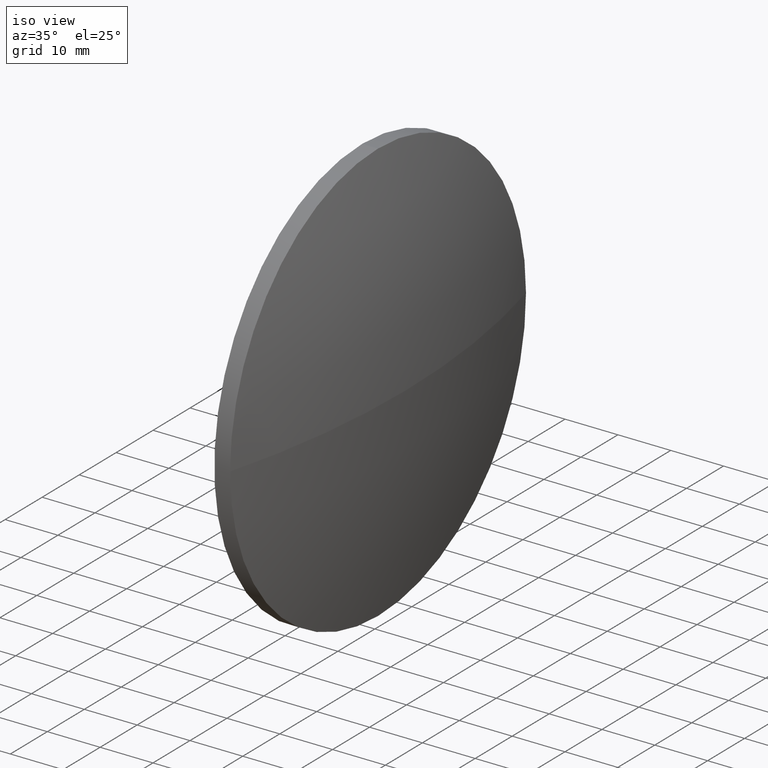
[diagram: clean part render]
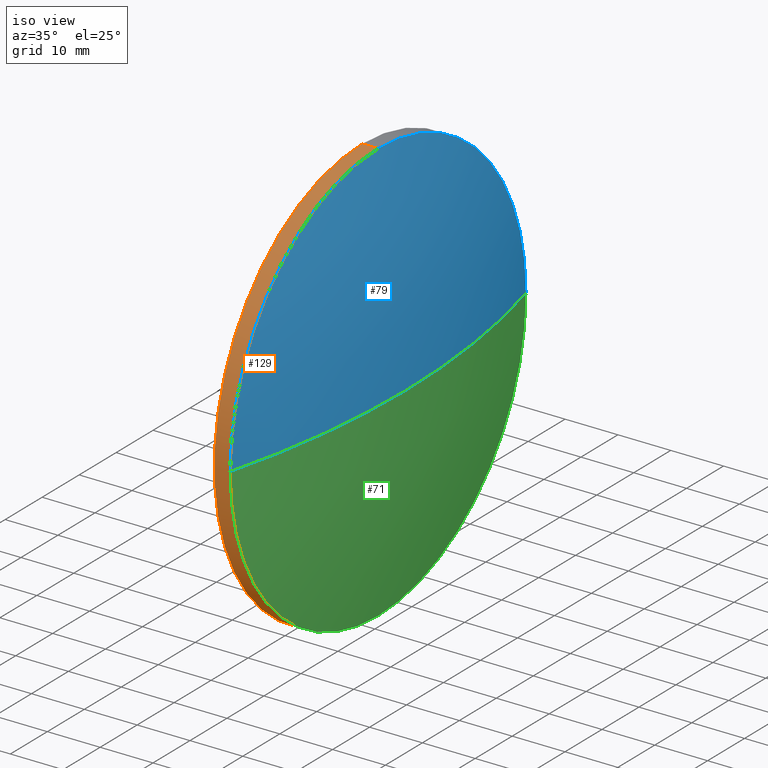
[diagram: same view with three faces highlighted in distinct colors, each labeled with its STEP entity id]
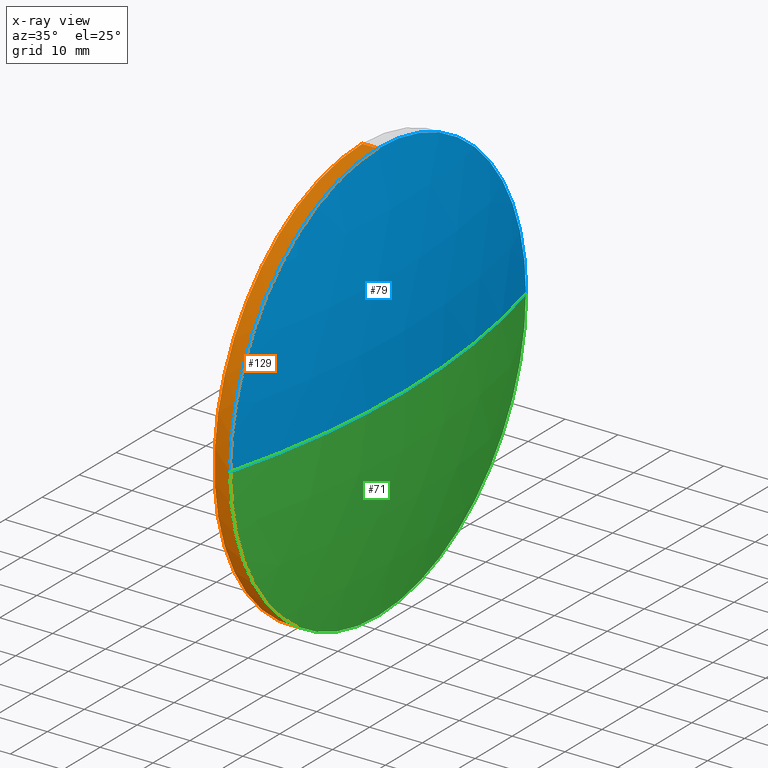
[diagram: x-ray of the same camera — body ghosted, the three highlighted faces saturated]
A machine part, iso view with three faces highlighted in distinct colors.
The next image is the same camera in x-ray (body ghosted, the three faces saturated) — at least one of them is partly hidden behind the body in this view.
Their STEP definitions:

[orange] entity #129 — the highlighted cylindrical surface (partial cylindrical patch) has radius 40 mm, axis along (-1, -0, -0).
#1 = CARTESIAN_POINT ( 'NONE',  ( 786.7768331134177500, 121.1916296255188900, 0.0000000000000000000 ) ) ;
#2 = DIRECTION ( 'NONE',  ( 0.0000000000000000000, 0.0000000000000000000, 1.000000000000000000 ) ) ;
#7 = DIRECTION ( 'NONE',  ( -1.000000000000000000, -0.0000000000000000000, -0.0000000000000000000 ) ) ;
#16 = DIRECTION ( 'NONE',  ( -1.000000000000000000, -0.0000000000000000000, -0.0000000000000000000 ) ) ;
#20 = VERTEX_POINT ( 'NONE', #88 ) ;
#24 = EDGE_CURVE ( 'NONE', #66, #20, #53, .T. ) ;
#29 = EDGE_CURVE ( 'NONE', #35, #66, #163, .T. ) ;
#32 = EDGE_CURVE ( 'NONE', #116, #20, #99, .T. ) ;
#35 = VERTEX_POINT ( 'NONE', #143 ) ;
#40 = EDGE_LOOP ( 'NONE', ( #170, #101, #152, #45, #118 ) ) ;
#44 = DIRECTION ( 'NONE',  ( -1.000000000000000000, -0.0000000000000000000, -0.0000000000000000000 ) ) ;
#45 = ORIENTED_EDGE ( 'NONE', *, *, #24, .T. ) ;
#53 = LINE ( 'NONE', #128, #137 ) ;
#56 = CARTESIAN_POINT ( 'NONE',  ( 789.7768331134177500, 121.1916296255188900, 0.0000000000000000000 ) ) ;
#59 = DIRECTION ( 'NONE',  ( 0.0000000000000000000, 0.0000000000000000000, 1.000000000000000000 ) ) ;
#61 = CARTESIAN_POINT ( 'NONE',  ( 786.7768331134177500, 121.1916296255188900, -40.00000000000000700 ) ) ;
#66 = VERTEX_POINT ( 'NONE', #162 ) ;
#73 = CARTESIAN_POINT ( 'NONE',  ( 789.7768331134177500, 121.1916296255188900, 0.0000000000000000000 ) ) ;
#80 = CARTESIAN_POINT ( 'NONE',  ( 767.9518554358446600, 121.1916296255188900, -40.00000000000000700 ) ) ;
#82 = VECTOR ( 'NONE', #89, 1000.000000000000000 ) ;
#86 = DIRECTION ( 'NONE',  ( 0.0000000000000000000, 0.0000000000000000000, 1.000000000000000000 ) ) ;
#88 = CARTESIAN_POINT ( 'NONE',  ( 786.7768331134177500, 121.1916296255188900, 40.00000000000000700 ) ) ;
#89 = DIRECTION ( 'NONE',  ( -1.000000000000000000, -0.0000000000000000000, -0.0000000000000000000 ) ) ;
#98 = CYLINDRICAL_SURFACE ( 'NONE', #114, 40.00000000000000700 ) ;
#99 = CIRCLE ( 'NONE', #182, 40.00000000000000700 ) ;
#101 = ORIENTED_EDGE ( 'NONE', *, *, #155, .T. ) ;
#105 = CARTESIAN_POINT ( 'NONE',  ( 789.7768331134177500, 121.1916296255188900, -40.00000000000000700 ) ) ;
#114 = AXIS2_PLACEMENT_3D ( 'NONE', #161, #44, #59 ) ;
#116 = VERTEX_POINT ( 'NONE', #61 ) ;
#118 = ORIENTED_EDGE ( 'NONE', *, *, #32, .F. ) ;
#125 = CIRCLE ( 'NONE', #157, 40.00000000000000700 ) ;
#128 = CARTESIAN_POINT ( 'NONE',  ( 767.9518554358446600, 121.1916296255188900, 40.00000000000000700 ) ) ;
#129 = ADVANCED_FACE ( 'NONE', ( #168 ), #98, .T. ) ;
#137 = VECTOR ( 'NONE', #146, 1000.000000000000000 ) ;
#143 = CARTESIAN_POINT ( 'NONE',  ( 789.7768331134177500, 81.19162962551892800, 0.0000000000000000000 ) ) ;
#146 = DIRECTION ( 'NONE',  ( -1.000000000000000000, -0.0000000000000000000, -0.0000000000000000000 ) ) ;
#151 = AXIS2_PLACEMENT_3D ( 'NONE', #56, #171, #86 ) ;
#152 = ORIENTED_EDGE ( 'NONE', *, *, #29, .T. ) ;
#153 = LINE ( 'NONE', #80, #82 ) ;
#155 = EDGE_CURVE ( 'NONE', #186, #35, #125, .T. ) ;
#157 = AXIS2_PLACEMENT_3D ( 'NONE', #73, #7, #178 ) ;
#159 = EDGE_CURVE ( 'NONE', #186, #116, #153, .T. ) ;
#161 = CARTESIAN_POINT ( 'NONE',  ( 767.9518554358446600, 121.1916296255188900, 0.0000000000000000000 ) ) ;
#162 = CARTESIAN_POINT ( 'NONE',  ( 789.7768331134177500, 121.1916296255188900, 40.00000000000000700 ) ) ;
#163 = CIRCLE ( 'NONE', #151, 40.00000000000000700 ) ;
#168 = FACE_OUTER_BOUND ( 'NONE', #40, .T. ) ;
#170 = ORIENTED_EDGE ( 'NONE', *, *, #159, .F. ) ;
#171 = DIRECTION ( 'NONE',  ( -1.000000000000000000, -0.0000000000000000000, -0.0000000000000000000 ) ) ;
#178 = DIRECTION ( 'NONE',  ( 0.0000000000000000000, 0.0000000000000000000, 1.000000000000000000 ) ) ;
#182 = AXIS2_PLACEMENT_3D ( 'NONE', #1, #16, #2 ) ;
#186 = VERTEX_POINT ( 'NONE', #105 ) ;

[blue] entity #79 — the highlighted spherical surface has radius 155.001 mm.
#10 = DIRECTION ( 'NONE',  ( 0.0000000000000000000, 0.0000000000000000000, -1.000000000000000000 ) ) ;
#17 = VERTEX_POINT ( 'NONE', #174 ) ;
#29 = EDGE_CURVE ( 'NONE', #35, #66, #163, .T. ) ;
#30 = CIRCLE ( 'NONE', #183, 155.0007543462769200 ) ;
#35 = VERTEX_POINT ( 'NONE', #143 ) ;
#43 = DIRECTION ( 'NONE',  ( 0.0000000000000000000, 0.0000000000000000000, 1.000000000000000000 ) ) ;
#47 = AXIS2_PLACEMENT_3D ( 'NONE', #117, #10, #108 ) ;
#54 = FACE_OUTER_BOUND ( 'NONE', #142, .T. ) ;
#56 = CARTESIAN_POINT ( 'NONE',  ( 789.7768331134177500, 121.1916296255188900, 0.0000000000000000000 ) ) ;
#57 = VERTEX_POINT ( 'NONE', #127 ) ;
#60 = DIRECTION ( 'NONE',  ( 0.0000000000000000000, -1.224646799147353200E-016, 1.000000000000000000 ) ) ;
#66 = VERTEX_POINT ( 'NONE', #162 ) ;
#75 = CARTESIAN_POINT ( 'NONE',  ( 640.0262610012722500, 121.1916296255189100, 0.0000000000000000000 ) ) ;
#76 = DIRECTION ( 'NONE',  ( -1.000000000000000000, -0.0000000000000000000, -0.0000000000000000000 ) ) ;
#77 = DIRECTION ( 'NONE',  ( 0.0000000000000000000, -1.000000000000000000, 0.0000000000000000000 ) ) ;
#79 = ADVANCED_FACE ( 'NONE', ( #54 ), #184, .T. ) ;
#86 = DIRECTION ( 'NONE',  ( 0.0000000000000000000, 0.0000000000000000000, 1.000000000000000000 ) ) ;
#93 = CARTESIAN_POINT ( 'NONE',  ( 789.7768331134177500, 121.1916296255188900, 0.0000000000000000000 ) ) ;
#108 = DIRECTION ( 'NONE',  ( -1.000000000000000000, 0.0000000000000000000, 0.0000000000000000000 ) ) ;
#109 = DIRECTION ( 'NONE',  ( 0.0000000000000000000, 0.0000000000000000000, 1.000000000000000000 ) ) ;
#111 = DIRECTION ( 'NONE',  ( 0.0000000000000000000, -1.000000000000000000, -1.224646799147353200E-016 ) ) ;
#113 = CIRCLE ( 'NONE', #139, 40.00000000000000700 ) ;
#117 = CARTESIAN_POINT ( 'NONE',  ( 640.0262610012722500, 121.1916296255189100, 0.0000000000000000000 ) ) ;
#121 = EDGE_CURVE ( 'NONE', #17, #57, #30, .T. ) ;
#122 = ORIENTED_EDGE ( 'NONE', *, *, #166, .F. ) ;
#127 = CARTESIAN_POINT ( 'NONE',  ( 789.7768331134177500, 161.1916296255188600, 4.898587196589406700E-015 ) ) ;
#131 = ORIENTED_EDGE ( 'NONE', *, *, #121, .T. ) ;
#138 = CARTESIAN_POINT ( 'NONE',  ( 640.0262610012722500, 121.1916296255189100, 0.0000000000000000000 ) ) ;
#139 = AXIS2_PLACEMENT_3D ( 'NONE', #93, #76, #109 ) ;
#141 = CIRCLE ( 'NONE', #47, 155.0007543462769200 ) ;
#142 = EDGE_LOOP ( 'NONE', ( #156, #131, #122, #165 ) ) ;
#143 = CARTESIAN_POINT ( 'NONE',  ( 789.7768331134177500, 81.19162962551892800, 0.0000000000000000000 ) ) ;
#151 = AXIS2_PLACEMENT_3D ( 'NONE', #56, #171, #86 ) ;
#156 = ORIENTED_EDGE ( 'NONE', *, *, #169, .F. ) ;
#162 = CARTESIAN_POINT ( 'NONE',  ( 789.7768331134177500, 121.1916296255188900, 40.00000000000000700 ) ) ;
#163 = CIRCLE ( 'NONE', #151, 40.00000000000000700 ) ;
#165 = ORIENTED_EDGE ( 'NONE', *, *, #29, .F. ) ;
#166 = EDGE_CURVE ( 'NONE', #66, #57, #113, .T. ) ;
#169 = EDGE_CURVE ( 'NONE', #17, #35, #141, .T. ) ;
#171 = DIRECTION ( 'NONE',  ( -1.000000000000000000, -0.0000000000000000000, -0.0000000000000000000 ) ) ;
#172 = AXIS2_PLACEMENT_3D ( 'NONE', #75, #43, #77 ) ;
#174 = CARTESIAN_POINT ( 'NONE',  ( 795.0270153475492000, 121.1916296255189000, 0.0000000000000000000 ) ) ;
#183 = AXIS2_PLACEMENT_3D ( 'NONE', #138, #60, #111 ) ;
#184 = SPHERICAL_SURFACE ( 'NONE', #172, 155.0007543462769200 ) ;

[green] entity #71 — the highlighted spherical surface has radius 155.001 mm.
#7 = DIRECTION ( 'NONE',  ( -1.000000000000000000, -0.0000000000000000000, -0.0000000000000000000 ) ) ;
#9 = EDGE_LOOP ( 'NONE', ( #90, #110, #78, #120 ) ) ;
#10 = DIRECTION ( 'NONE',  ( 0.0000000000000000000, 0.0000000000000000000, -1.000000000000000000 ) ) ;
#17 = VERTEX_POINT ( 'NONE', #174 ) ;
#30 = CIRCLE ( 'NONE', #183, 155.0007543462769200 ) ;
#34 = DIRECTION ( 'NONE',  ( 0.0000000000000000000, 0.0000000000000000000, 1.000000000000000000 ) ) ;
#35 = VERTEX_POINT ( 'NONE', #143 ) ;
#41 = FACE_OUTER_BOUND ( 'NONE', #9, .T. ) ;
#46 = DIRECTION ( 'NONE',  ( 0.0000000000000000000, 0.0000000000000000000, 1.000000000000000000 ) ) ;
#47 = AXIS2_PLACEMENT_3D ( 'NONE', #117, #10, #108 ) ;
#55 = AXIS2_PLACEMENT_3D ( 'NONE', #135, #133, #34 ) ;
#57 = VERTEX_POINT ( 'NONE', #127 ) ;
#60 = DIRECTION ( 'NONE',  ( 0.0000000000000000000, -1.224646799147353200E-016, 1.000000000000000000 ) ) ;
#71 = ADVANCED_FACE ( 'NONE', ( #41 ), #95, .T. ) ;
#73 = CARTESIAN_POINT ( 'NONE',  ( 789.7768331134177500, 121.1916296255188900, 0.0000000000000000000 ) ) ;
#78 = ORIENTED_EDGE ( 'NONE', *, *, #155, .F. ) ;
#90 = ORIENTED_EDGE ( 'NONE', *, *, #121, .F. ) ;
#95 = SPHERICAL_SURFACE ( 'NONE', #164, 155.0007543462769200 ) ;
#102 = CARTESIAN_POINT ( 'NONE',  ( 640.0262610012722500, 121.1916296255189100, 0.0000000000000000000 ) ) ;
#103 = CIRCLE ( 'NONE', #55, 40.00000000000000700 ) ;
#105 = CARTESIAN_POINT ( 'NONE',  ( 789.7768331134177500, 121.1916296255188900, -40.00000000000000700 ) ) ;
#108 = DIRECTION ( 'NONE',  ( -1.000000000000000000, 0.0000000000000000000, 0.0000000000000000000 ) ) ;
#110 = ORIENTED_EDGE ( 'NONE', *, *, #169, .T. ) ;
#111 = DIRECTION ( 'NONE',  ( 0.0000000000000000000, -1.000000000000000000, -1.224646799147353200E-016 ) ) ;
#117 = CARTESIAN_POINT ( 'NONE',  ( 640.0262610012722500, 121.1916296255189100, 0.0000000000000000000 ) ) ;
#120 = ORIENTED_EDGE ( 'NONE', *, *, #179, .F. ) ;
#121 = EDGE_CURVE ( 'NONE', #17, #57, #30, .T. ) ;
#125 = CIRCLE ( 'NONE', #157, 40.00000000000000700 ) ;
#127 = CARTESIAN_POINT ( 'NONE',  ( 789.7768331134177500, 161.1916296255188600, 4.898587196589406700E-015 ) ) ;
#133 = DIRECTION ( 'NONE',  ( -1.000000000000000000, -0.0000000000000000000, -0.0000000000000000000 ) ) ;
#134 = DIRECTION ( 'NONE',  ( 0.0000000000000000000, -1.000000000000000000, 0.0000000000000000000 ) ) ;
#135 = CARTESIAN_POINT ( 'NONE',  ( 789.7768331134177500, 121.1916296255188900, 0.0000000000000000000 ) ) ;
#138 = CARTESIAN_POINT ( 'NONE',  ( 640.0262610012722500, 121.1916296255189100, 0.0000000000000000000 ) ) ;
#141 = CIRCLE ( 'NONE', #47, 155.0007543462769200 ) ;
#143 = CARTESIAN_POINT ( 'NONE',  ( 789.7768331134177500, 81.19162962551892800, 0.0000000000000000000 ) ) ;
#155 = EDGE_CURVE ( 'NONE', #186, #35, #125, .T. ) ;
#157 = AXIS2_PLACEMENT_3D ( 'NONE', #73, #7, #178 ) ;
#164 = AXIS2_PLACEMENT_3D ( 'NONE', #102, #46, #134 ) ;
#169 = EDGE_CURVE ( 'NONE', #17, #35, #141, .T. ) ;
#174 = CARTESIAN_POINT ( 'NONE',  ( 795.0270153475492000, 121.1916296255189000, 0.0000000000000000000 ) ) ;
#178 = DIRECTION ( 'NONE',  ( 0.0000000000000000000, 0.0000000000000000000, 1.000000000000000000 ) ) ;
#179 = EDGE_CURVE ( 'NONE', #57, #186, #103, .T. ) ;
#183 = AXIS2_PLACEMENT_3D ( 'NONE', #138, #60, #111 ) ;
#186 = VERTEX_POINT ( 'NONE', #105 ) ;